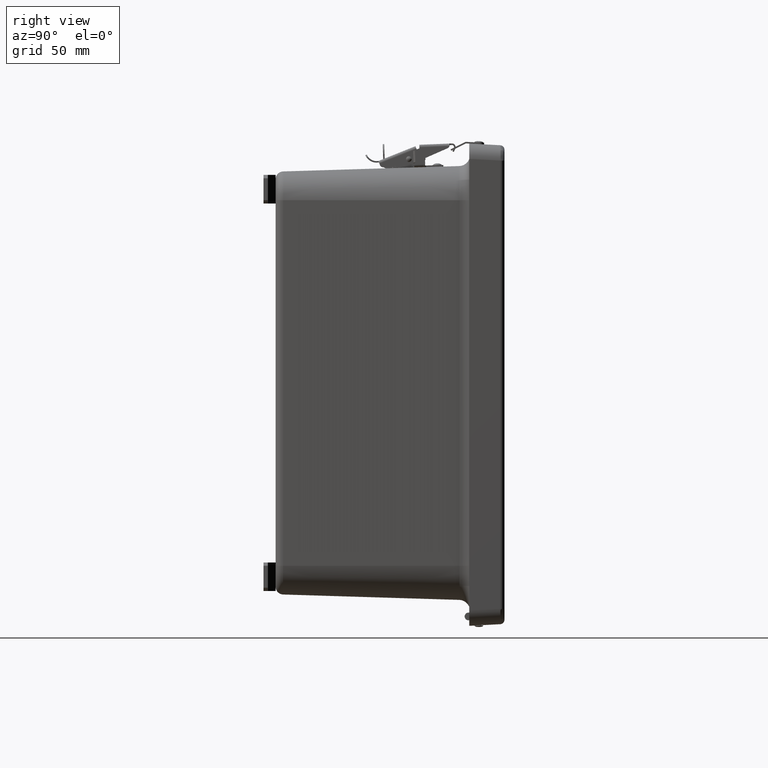
[diagram: clean part render]
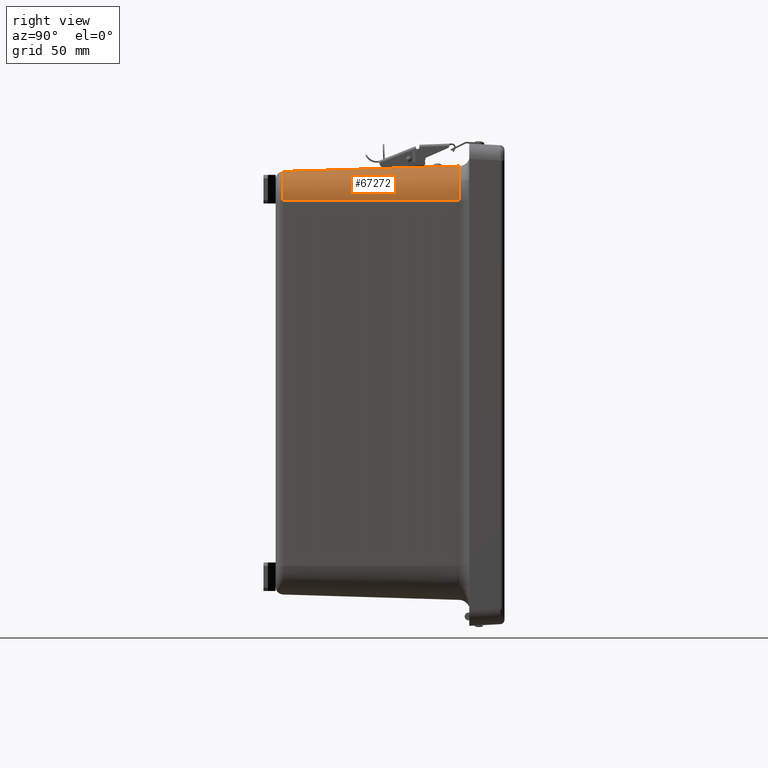
[diagram: same view with one face highlighted and labeled with its STEP entity id]
A machine part, right view. The second image highlights one B-rep face of the part: STEP entity #67272.
In plain terms, the highlighted conical surface has half-angle 1.75 deg.
Its self-contained STEP definition (entity closure, byte-faithful):
#600 = CARTESIAN_POINT ( 'NONE',  ( 6.018351045082069600, -5.912687934392951500, 5.198999999999999000 ) ) ;
#4186 = CONICAL_SURFACE ( 'NONE', #59848, 0.9999999999999996700, 0.03054326190990083400 ) ;
#11466 = DIRECTION ( 'NONE',  ( 6.418663284611948800E-018, 0.9995335908367130000, 0.03053851320982272500 ) ) ;
#21125 = DIRECTION ( 'NONE',  ( 0.0000000000000000000, 0.0000000000000000000, -1.000000000000000000 ) ) ;
#23380 = FACE_OUTER_BOUND ( 'NONE', #51785, .T. ) ;
#23588 = VERTEX_POINT ( 'NONE', #26193 ) ;
#26193 = CARTESIAN_POINT ( 'NONE',  ( 5.198999999999999800, -0.8964719838785354400, 6.171610303672740500 ) ) ;
#29706 = VERTEX_POINT ( 'NONE', #600 ) ;
#29736 = DIRECTION ( 'NONE',  ( 0.0000000000000000000, 1.000000000000000000, 0.0000000000000000000 ) ) ;
#29853 = AXIS2_PLACEMENT_3D ( 'NONE', #72640, #56480, #40693 ) ;
#30015 = ORIENTED_EDGE ( 'NONE', *, *, #69502, .T. ) ;
#30728 = ORIENTED_EDGE ( 'NONE', *, *, #96308, .T. ) ;
#38609 = VERTEX_POINT ( 'NONE', #84466 ) ;
#40693 = DIRECTION ( 'NONE',  ( 0.0000000000000000000, 0.0000000000000000000, -1.000000000000000000 ) ) ;
#51033 = LINE ( 'NONE', #76581, #66463 ) ;
#51785 = EDGE_LOOP ( 'NONE', ( #69332, #30728, #30015, #83717 ) ) ;
#56010 = EDGE_CURVE ( 'NONE', #95828, #23588, #51033, .T. ) ;
#56480 = DIRECTION ( 'NONE',  ( -0.0000000000000000000, 1.000000000000000000, 0.0000000000000000000 ) ) ;
#56517 = CIRCLE ( 'NONE', #66122, 0.9726103036727427000 ) ;
#59848 = AXIS2_PLACEMENT_3D ( 'NONE', #86292, #29736, #21125 ) ;
#66122 = AXIS2_PLACEMENT_3D ( 'NONE', #70134, #86631, #95255 ) ;
#66463 = VECTOR ( 'NONE', #11466, 39.37007874015748100 ) ;
#67272 = ADVANCED_FACE ( 'NONE', ( #23380 ), #4186, .T. ) ;
#69130 = EDGE_CURVE ( 'NONE', #38609, #23588, #56517, .T. ) ;
#69332 = ORIENTED_EDGE ( 'NONE', *, *, #56010, .F. ) ;
#69502 = EDGE_CURVE ( 'NONE', #29706, #38609, #93710, .T. ) ;
#70134 = CARTESIAN_POINT ( 'NONE',  ( 5.198999999999999800, -0.8964719838785353300, 5.198999999999999000 ) ) ;
#71854 = VECTOR ( 'NONE', #92636, 39.37007874015748100 ) ;
#72640 = CARTESIAN_POINT ( 'NONE',  ( 5.198999999999999800, -5.912687934392950600, 5.198999999999999000 ) ) ;
#76581 = CARTESIAN_POINT ( 'NONE',  ( 5.198999999999999800, -1.516480271171051900E-032, 6.198999999999998100 ) ) ;
#83717 = ORIENTED_EDGE ( 'NONE', *, *, #69130, .T. ) ;
#84359 = CARTESIAN_POINT ( 'NONE',  ( 6.198999999999999800, 1.667753302444325400E-017, 5.198999999999999000 ) ) ;
#84466 = CARTESIAN_POINT ( 'NONE',  ( 6.171610303672742300, -0.8964719838785354400, 5.198999999999999000 ) ) ;
#86292 = CARTESIAN_POINT ( 'NONE',  ( 5.198999999999999800, 0.0000000000000000000, 5.198999999999999000 ) ) ;
#86631 = DIRECTION ( 'NONE',  ( -0.0000000000000000000, -1.000000000000000000, -0.0000000000000000000 ) ) ;
#92636 = DIRECTION ( 'NONE',  ( 0.03053851320982272500, 0.9995335908367130000, 0.0000000000000000000 ) ) ;
#93710 = LINE ( 'NONE', #84359, #71854 ) ;
#95255 = DIRECTION ( 'NONE',  ( 0.0000000000000000000, 0.0000000000000000000, 1.000000000000000000 ) ) ;
#95727 = CARTESIAN_POINT ( 'NONE',  ( 5.198999999999999800, -5.912687934392951500, 6.018351045082067000 ) ) ;
#95828 = VERTEX_POINT ( 'NONE', #95727 ) ;
#96308 = EDGE_CURVE ( 'NONE', #95828, #29706, #105679, .T. ) ;
#105679 = CIRCLE ( 'NONE', #29853, 0.8193510450820694600 ) ;